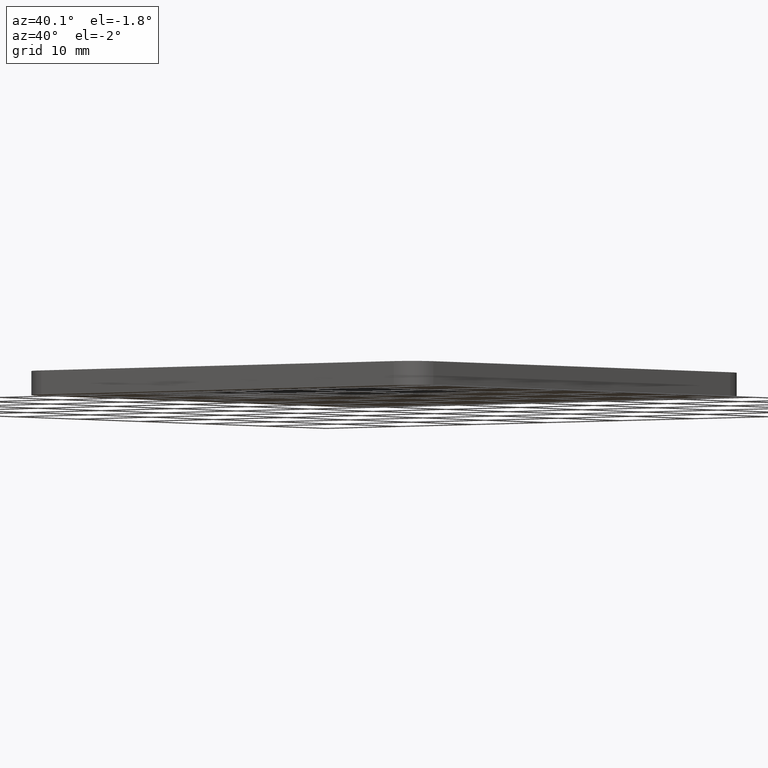
[diagram: clean part render]
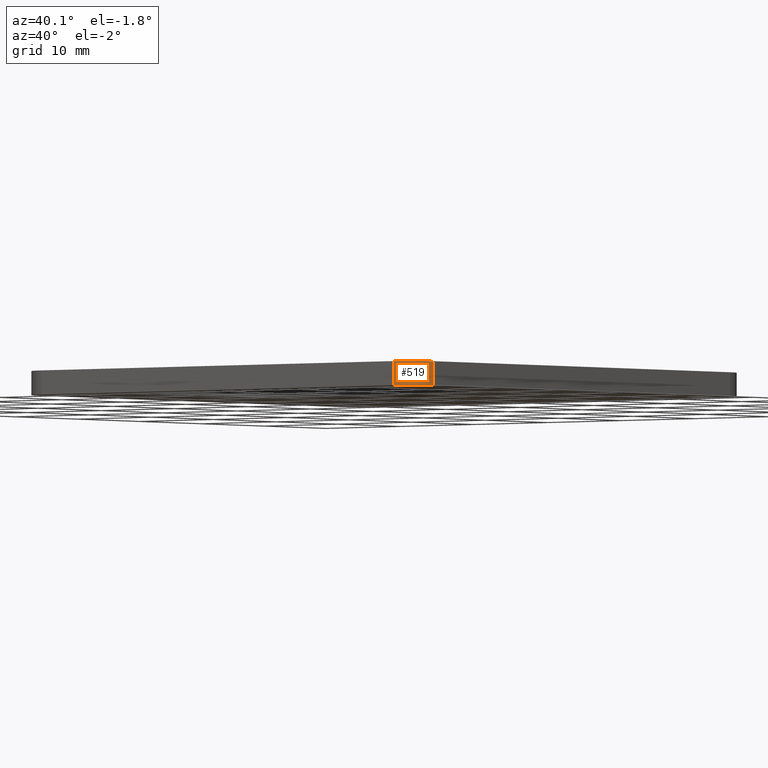
[diagram: same view with one face highlighted and labeled with its STEP entity id]
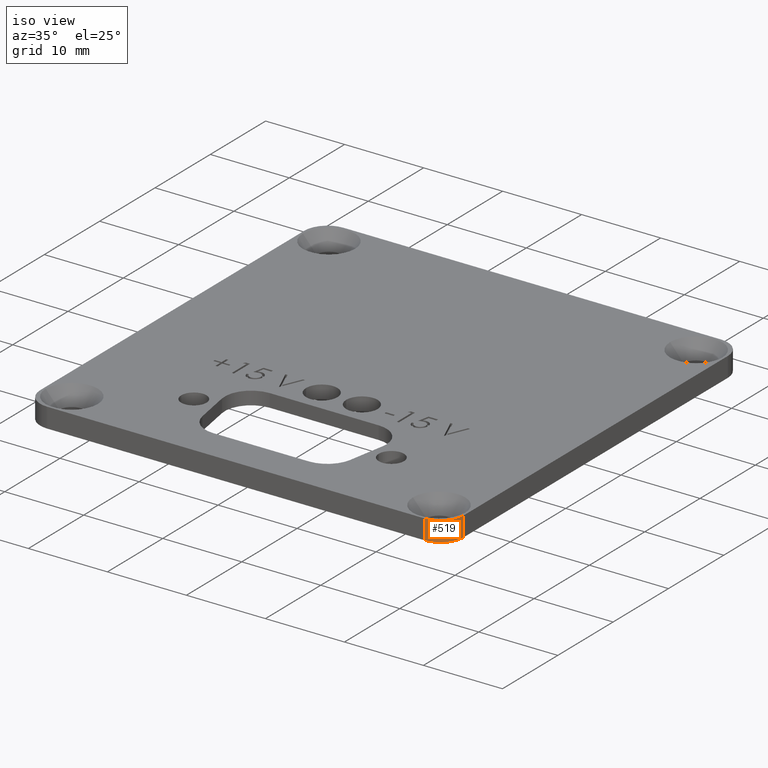
[diagram: same view with one face highlighted and labeled with its STEP entity id]
A machine part, auxiliary view. The second image highlights one B-rep face of the part: STEP entity #519.
A second angle (iso view) of the same face is appended — the face is thin or edge-on in the first view.
In plain terms, the highlighted cylindrical surface (edge-blend (fillet) strip) has radius 2.921 mm, axis along (0, 0, -1).
Its self-contained STEP definition (entity closure, byte-faithful):
#333 = VERTEX_POINT ( 'NONE', #2895 ) ;
#370 = DIRECTION ( 'NONE',  ( 0.0000000000000000000, 0.0000000000000000000, 1.000000000000000000 ) ) ;
#464 = DIRECTION ( 'NONE',  ( 0.0000000000000000000, 0.0000000000000000000, -1.000000000000000000 ) ) ;
#502 = CARTESIAN_POINT ( 'NONE',  ( 0.9399999999999999500, -0.9399999999999999500, 0.04921259842519685300 ) ) ;
#519 = ADVANCED_FACE ( 'NONE', ( #1242 ), #3704, .T. ) ;
#743 = CIRCLE ( 'NONE', #3443, 0.1149999999999998700 ) ;
#819 = DIRECTION ( 'NONE',  ( 0.0000000000000000000, 0.0000000000000000000, -1.000000000000000000 ) ) ;
#1064 = EDGE_CURVE ( 'NONE', #6006, #333, #2522, .T. ) ;
#1114 = CARTESIAN_POINT ( 'NONE',  ( 0.9399999999999999500, -0.9399999999999999500, 0.04921259842519685300 ) ) ;
#1191 = ORIENTED_EDGE ( 'NONE', *, *, #2494, .T. ) ;
#1242 = FACE_OUTER_BOUND ( 'NONE', #3682, .T. ) ;
#1258 = AXIS2_PLACEMENT_3D ( 'NONE', #502, #6437, #5117 ) ;
#1325 = VERTEX_POINT ( 'NONE', #4715 ) ;
#1354 = CARTESIAN_POINT ( 'NONE',  ( 0.9399999999999999500, -0.9399999999999999500, -0.04921259842519685300 ) ) ;
#1383 = VECTOR ( 'NONE', #464, 39.37007874015748100 ) ;
#1427 = CARTESIAN_POINT ( 'NONE',  ( 0.9399999999999999500, -1.054999999999999700, 0.04921259842519685300 ) ) ;
#2494 = EDGE_CURVE ( 'NONE', #333, #4433, #743, .T. ) ;
#2522 = LINE ( 'NONE', #1427, #1383 ) ;
#2884 = AXIS2_PLACEMENT_3D ( 'NONE', #1114, #5098, #3080 ) ;
#2895 = CARTESIAN_POINT ( 'NONE',  ( 0.9399999999999999500, -1.054999999999999700, -0.04921259842519685300 ) ) ;
#2927 = CIRCLE ( 'NONE', #1258, 0.1149999999999998700 ) ;
#3080 = DIRECTION ( 'NONE',  ( -1.000000000000000000, 0.0000000000000000000, 0.0000000000000000000 ) ) ;
#3244 = CARTESIAN_POINT ( 'NONE',  ( 1.054999999999999700, -0.9399999999999999500, 0.04921259842519685300 ) ) ;
#3443 = AXIS2_PLACEMENT_3D ( 'NONE', #1354, #370, #3806 ) ;
#3682 = EDGE_LOOP ( 'NONE', ( #1191, #4547, #5745, #4673 ) ) ;
#3704 = CYLINDRICAL_SURFACE ( 'NONE', #2884, 0.1149999999999998700 ) ;
#3806 = DIRECTION ( 'NONE',  ( 1.000000000000000000, 0.0000000000000000000, 0.0000000000000000000 ) ) ;
#3990 = EDGE_CURVE ( 'NONE', #6006, #1325, #2927, .T. ) ;
#4433 = VERTEX_POINT ( 'NONE', #5317 ) ;
#4461 = VECTOR ( 'NONE', #819, 39.37007874015748100 ) ;
#4543 = EDGE_CURVE ( 'NONE', #1325, #4433, #5778, .T. ) ;
#4547 = ORIENTED_EDGE ( 'NONE', *, *, #4543, .F. ) ;
#4673 = ORIENTED_EDGE ( 'NONE', *, *, #1064, .T. ) ;
#4715 = CARTESIAN_POINT ( 'NONE',  ( 1.054999999999999700, -0.9399999999999999500, 0.04921259842519685300 ) ) ;
#5098 = DIRECTION ( 'NONE',  ( 0.0000000000000000000, 0.0000000000000000000, -1.000000000000000000 ) ) ;
#5117 = DIRECTION ( 'NONE',  ( 1.000000000000000000, 0.0000000000000000000, 0.0000000000000000000 ) ) ;
#5317 = CARTESIAN_POINT ( 'NONE',  ( 1.054999999999999700, -0.9399999999999999500, -0.04921259842519685300 ) ) ;
#5745 = ORIENTED_EDGE ( 'NONE', *, *, #3990, .F. ) ;
#5778 = LINE ( 'NONE', #3244, #4461 ) ;
#6006 = VERTEX_POINT ( 'NONE', #6391 ) ;
#6391 = CARTESIAN_POINT ( 'NONE',  ( 0.9399999999999999500, -1.054999999999999700, 0.04921259842519685300 ) ) ;
#6437 = DIRECTION ( 'NONE',  ( 0.0000000000000000000, 0.0000000000000000000, 1.000000000000000000 ) ) ;